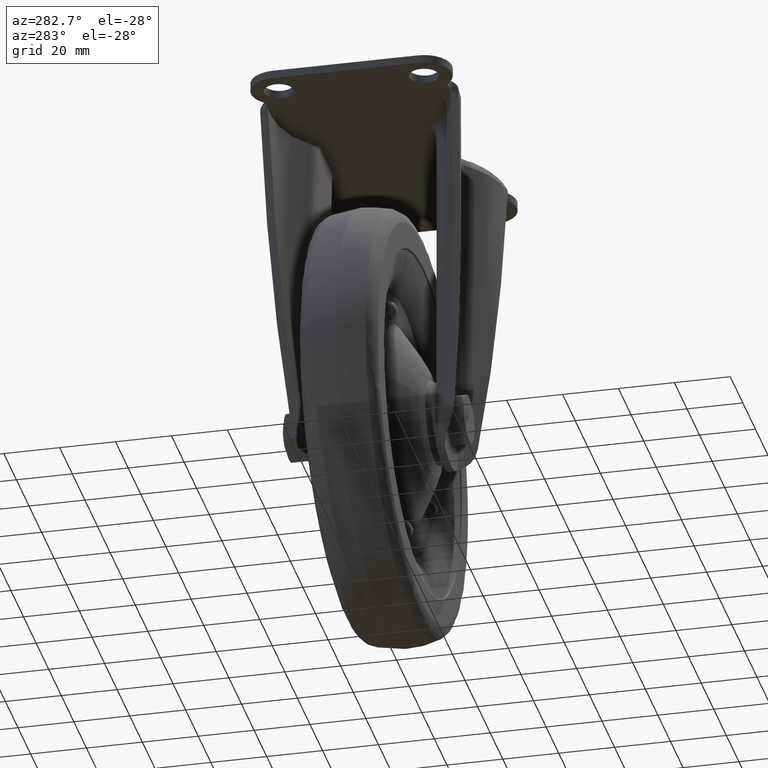
[diagram: clean part render]
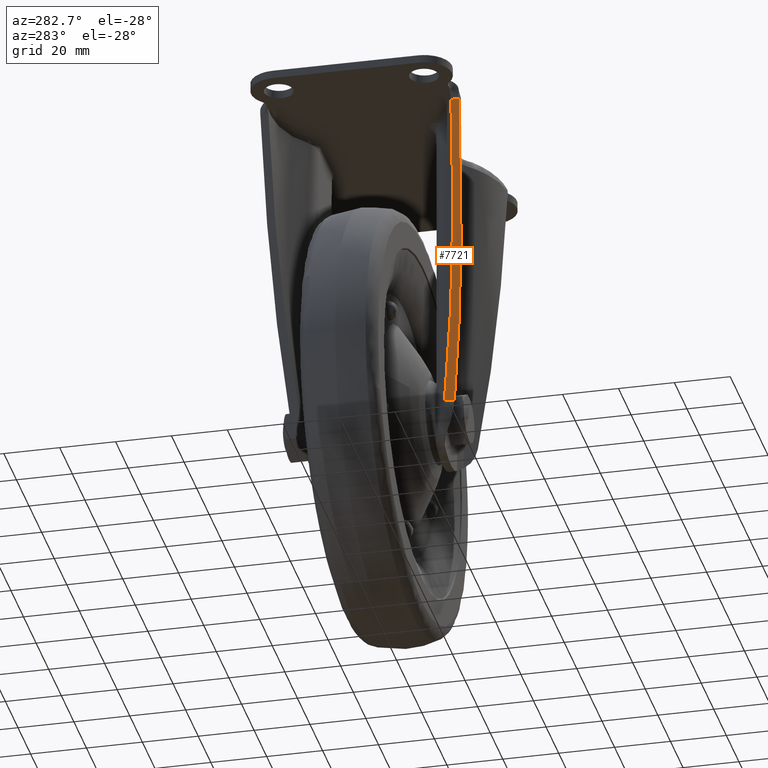
[diagram: same view with one face highlighted and labeled with its STEP entity id]
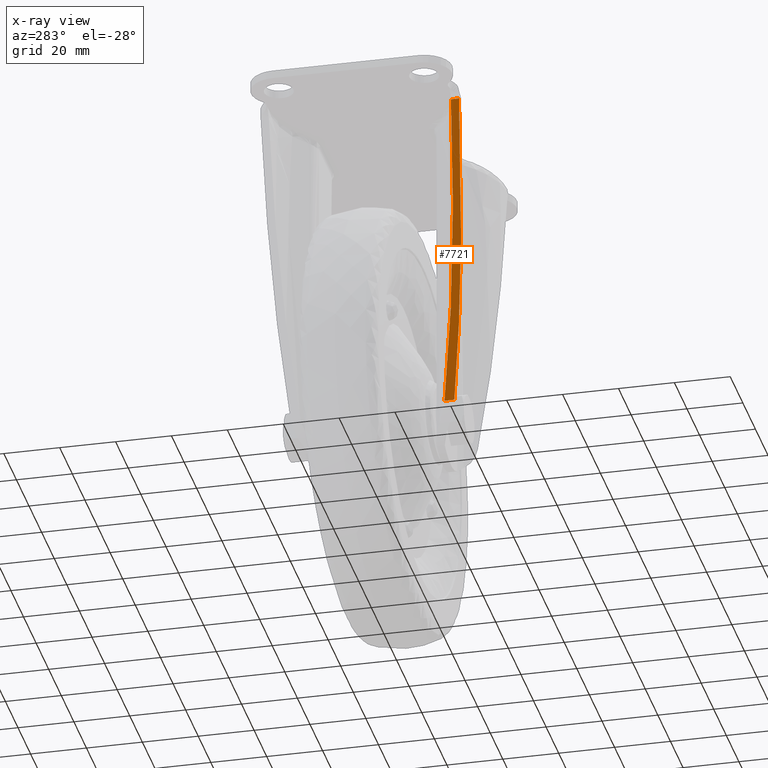
[diagram: x-ray of the same camera — body ghosted, the highlighted face saturated]
A machine part, auxiliary view. The second image highlights one B-rep face of the part: STEP entity #7721.
The next image is the same camera in x-ray: the body ghosted, the highlighted face saturated — about 0% of this face is hidden behind the body in this view.
In plain terms, the highlighted face is a freeform B-spline surface patch.
Its self-contained STEP definition (entity closure, byte-faithful):
#5934=CARTESIAN_POINT('',(-38.384969815767107,-32.595007900842553,-6.183895033378120));
#5935=VERTEX_POINT('',#5934);
#6013=CARTESIAN_POINT('',(-18.693041682196601,-25.869434690258650,-114.401500746498200));
#6014=VERTEX_POINT('',#6013);
#6034=CARTESIAN_POINT('',(-38.384969815767107,-32.595007900842553,-6.183895033378120));
#6035=CARTESIAN_POINT('',(-27.454555737698527,-32.407402208464745,-66.252326776485901));
#6036=CARTESIAN_POINT('',(-18.693041682196601,-25.869434690258679,-114.401500746498200));
#6044=(BOUNDED_CURVE()B_SPLINE_CURVE(2,(#6034,#6035,#6036),.UNSPECIFIED.,.F.,.U.)CURVE()GEOMETRIC_REPRESENTATION_ITEM()QUASI_UNIFORM_CURVE()RATIONAL_B_SPLINE_CURVE((1.0,0.951735064180671,1.0))REPRESENTATION_ITEM(''));
#6045=EDGE_CURVE('',#5935,#6014,#6044,.T.);
#6237=CARTESIAN_POINT('',(-38.384969815767107,-35.495401359037047,-6.183895033378110));
#6238=VERTEX_POINT('',#6237);
#6248=CARTESIAN_POINT('',(-18.693041682196601,-29.411709804403500,-114.401500746498200));
#6249=VERTEX_POINT('',#6248);
#6250=CARTESIAN_POINT('',(-38.384969815767128,-35.495401359037061,-6.183895033378110));
#6251=CARTESIAN_POINT('',(-27.651675467620674,-35.325700557248780,-65.169049147891229));
#6252=CARTESIAN_POINT('',(-18.693041682196611,-29.411709804403550,-114.401500746498200));
#6260=(BOUNDED_CURVE()B_SPLINE_CURVE(2,(#6250,#6251,#6252),.UNSPECIFIED.,.F.,.U.)CURVE()GEOMETRIC_REPRESENTATION_ITEM()QUASI_UNIFORM_CURVE()RATIONAL_B_SPLINE_CURVE((1.0,0.959989373029339,1.0))REPRESENTATION_ITEM(''));
#6261=EDGE_CURVE('',#6238,#6249,#6260,.T.);
#7579=CARTESIAN_POINT('',(-38.384969815767107,-35.495401359037047,-6.183895033378110));
#7580=CARTESIAN_POINT('',(-38.384969815767107,-32.595007900842553,-6.183895033378120));
#7581=QUASI_UNIFORM_CURVE('',1,(#7579,#7580),.UNSPECIFIED.,.F.,.U.);
#7582=EDGE_CURVE('',#6238,#5935,#7581,.T.);
#7706=CARTESIAN_POINT('',(-39.368581587872242,-35.976218375485537,-0.778425837754493));
#7707=CARTESIAN_POINT('',(-17.709429381912908,-35.976218375485537,-119.806972844744190));
#7708=CARTESIAN_POINT('',(-39.368581587872242,-25.388617415621621,-0.778425837754493));
#7709=CARTESIAN_POINT('',(-17.709429381912908,-25.388617415621621,-119.806972844744190));
#7710=B_SPLINE_SURFACE_WITH_KNOTS('',1,1,((#7706,#7708),(#7707,#7709)),.UNSPECIFIED.,.F.,.F.,.U.,(2,2),(2,2),(0.0,120.983114015452900),(0.0,10.587600959863920),.UNSPECIFIED.);
#7711=ORIENTED_EDGE('',*,*,#6261,.F.);
#7712=ORIENTED_EDGE('',*,*,#7582,.T.);
#7713=ORIENTED_EDGE('',*,*,#6045,.T.);
#7714=CARTESIAN_POINT('',(-18.693041682196601,-25.869434690258650,-114.401500746498200));
#7715=CARTESIAN_POINT('',(-18.693041682196601,-29.411709804403500,-114.401500746498200));
#7716=QUASI_UNIFORM_CURVE('',1,(#7714,#7715),.UNSPECIFIED.,.F.,.U.);
#7717=EDGE_CURVE('',#6014,#6249,#7716,.T.);
#7718=ORIENTED_EDGE('',*,*,#7717,.T.);
#7719=EDGE_LOOP('',(#7711,#7712,#7713,#7718));
#7720=FACE_OUTER_BOUND('',#7719,.T.);
#7721=ADVANCED_FACE('',(#7720),#7710,.F.);